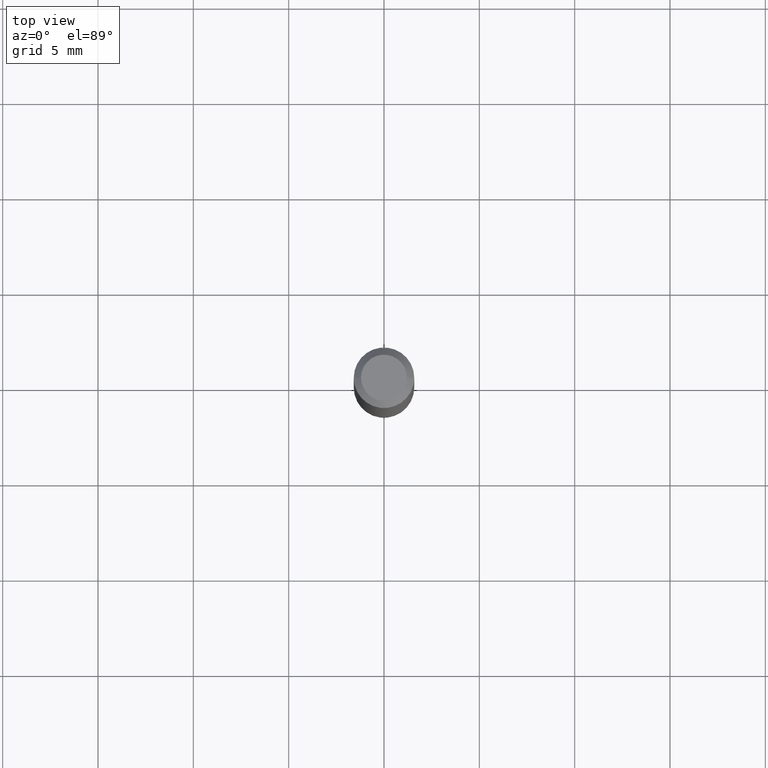
[diagram: clean part render]
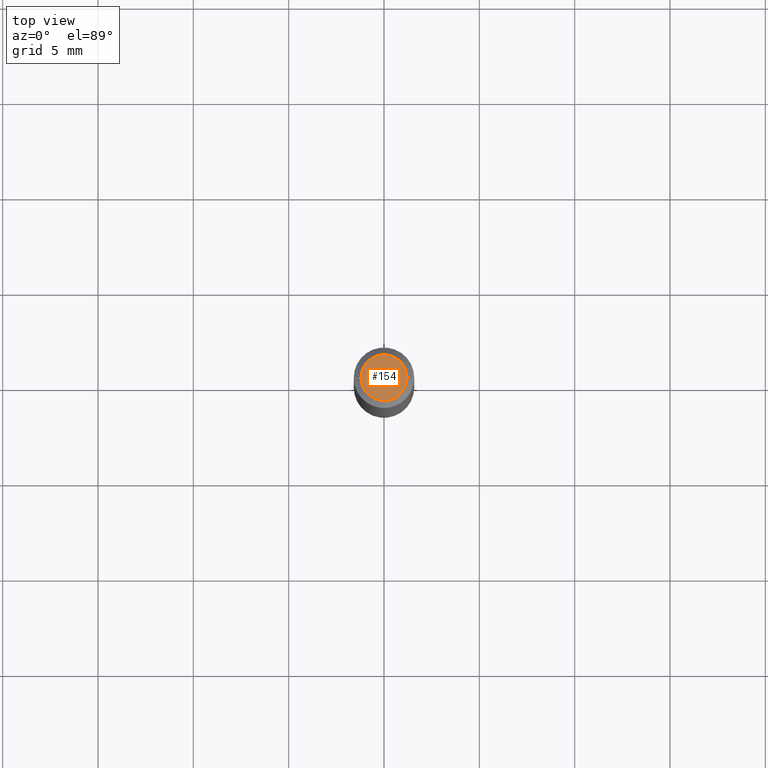
[diagram: same view with one face highlighted and labeled with its STEP entity id]
A machine part, top view. The second image highlights one B-rep face of the part: STEP entity #154.
In plain terms, the highlighted planar face has unit normal (0, -0, -1).
Its self-contained STEP definition (entity closure, byte-faithful):
#6 = AXIS2_PLACEMENT_3D ( 'NONE', #291, #462, #286 ) ;
#10 = VERTEX_POINT ( 'NONE', #198 ) ;
#15 = VERTEX_POINT ( 'NONE', #236 ) ;
#68 = FACE_OUTER_BOUND ( 'NONE', #384, .T. ) ;
#77 = ORIENTED_EDGE ( 'NONE', *, *, #91, .T. ) ;
#84 = ORIENTED_EDGE ( 'NONE', *, *, #157, .T. ) ;
#91 = EDGE_CURVE ( 'NONE', #15, #10, #240, .T. ) ;
#144 = CARTESIAN_POINT ( 'NONE',  ( -1.280979716297259006E-44, 1.828899540070383801E-30, 5.238176471756152972E-16 ) ) ;
#148 = DIRECTION ( 'NONE',  ( 2.438088387897960049E-29, -3.491481338843145188E-15, -1.000000000000000000 ) ) ;
#154 = ADVANCED_FACE ( 'NONE', ( #68 ), #224, .F. ) ;
#157 = EDGE_CURVE ( 'NONE', #10, #15, #412, .T. ) ;
#198 = CARTESIAN_POINT ( 'NONE',  ( 0.04749999999999999362, -4.035134999187569255E-16, 5.238176471756178610E-16 ) ) ;
#216 = AXIS2_PLACEMENT_3D ( 'NONE', #144, #359, #367 ) ;
#219 = DIRECTION ( 'NONE',  ( -1.000000000000000000, 6.982962677686265922E-15, -4.876176775795935793E-29 ) ) ;
#224 = PLANE ( 'NONE',  #241 ) ;
#236 = CARTESIAN_POINT ( 'NONE',  ( -0.04749999999999999362, 3.578768372314219874E-16, 5.238176471756128320E-16 ) ) ;
#240 = CIRCLE ( 'NONE', #6, 0.04749999999999999362 ) ;
#241 = AXIS2_PLACEMENT_3D ( 'NONE', #326, #148, #219 ) ;
#286 = DIRECTION ( 'NONE',  ( 1.000000000000000000, -6.982962677686267499E-15, 4.852736867747366768E-29 ) ) ;
#291 = CARTESIAN_POINT ( 'NONE',  ( -1.280979716297259006E-44, 1.828899540070383801E-30, 5.238176471756152972E-16 ) ) ;
#326 = CARTESIAN_POINT ( 'NONE',  ( 3.316907271900976096E-16, 0.04749999999999999362, 9.606345999275825217E-17 ) ) ;
#359 = DIRECTION ( 'NONE',  ( -2.445468806185136597E-29, 3.491481338843145583E-15, 1.000000000000000000 ) ) ;
#367 = DIRECTION ( 'NONE',  ( 1.000000000000000000, -6.982962677686267499E-15, 4.852736867747366768E-29 ) ) ;
#384 = EDGE_LOOP ( 'NONE', ( #77, #84 ) ) ;
#412 = CIRCLE ( 'NONE', #216, 0.04749999999999999362 ) ;
#462 = DIRECTION ( 'NONE',  ( -2.445468806185136597E-29, 3.491481338843145583E-15, 1.000000000000000000 ) ) ;